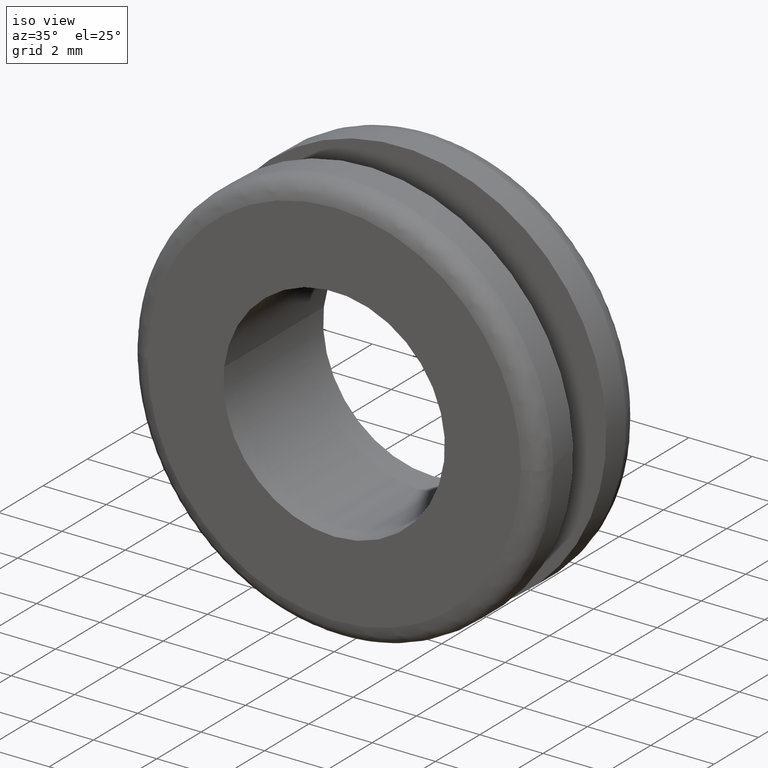
[diagram: clean part render]
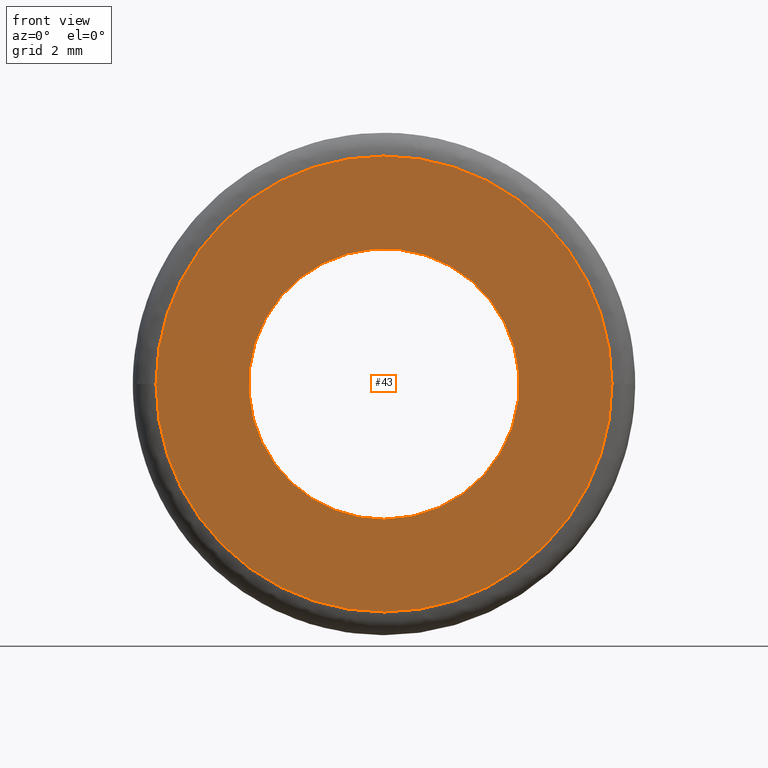
[diagram: tour spotlight — one face highlighted and labeled with its STEP entity id]
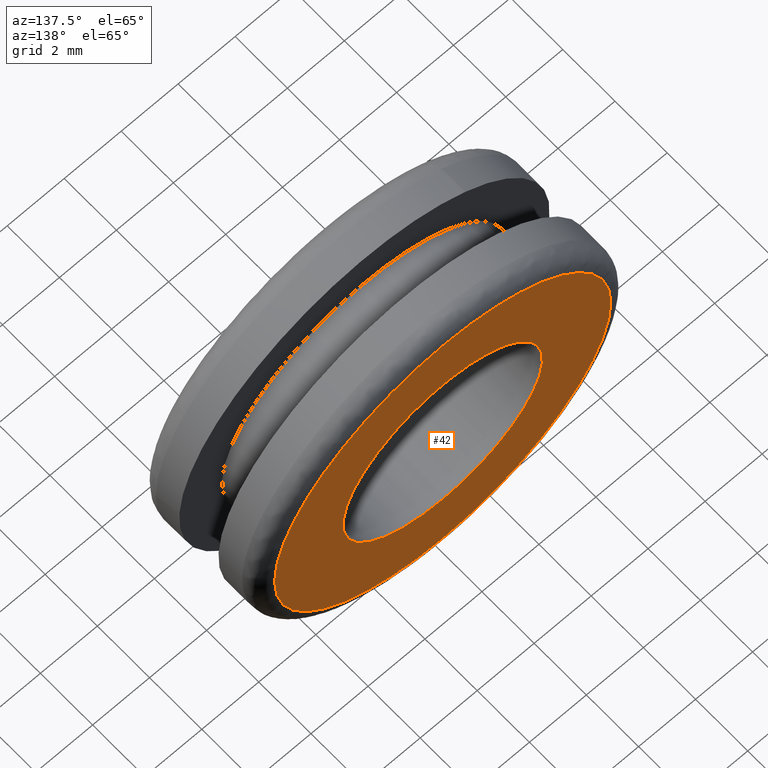
[diagram: tour spotlight — one face highlighted and labeled with its STEP entity id]
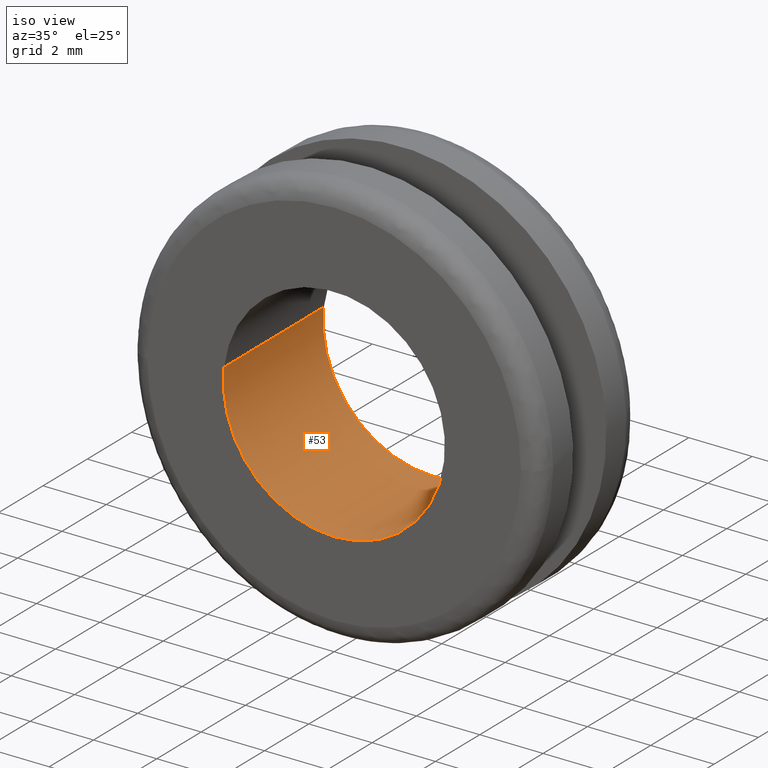
[diagram: tour spotlight — one face highlighted and labeled with its STEP entity id]
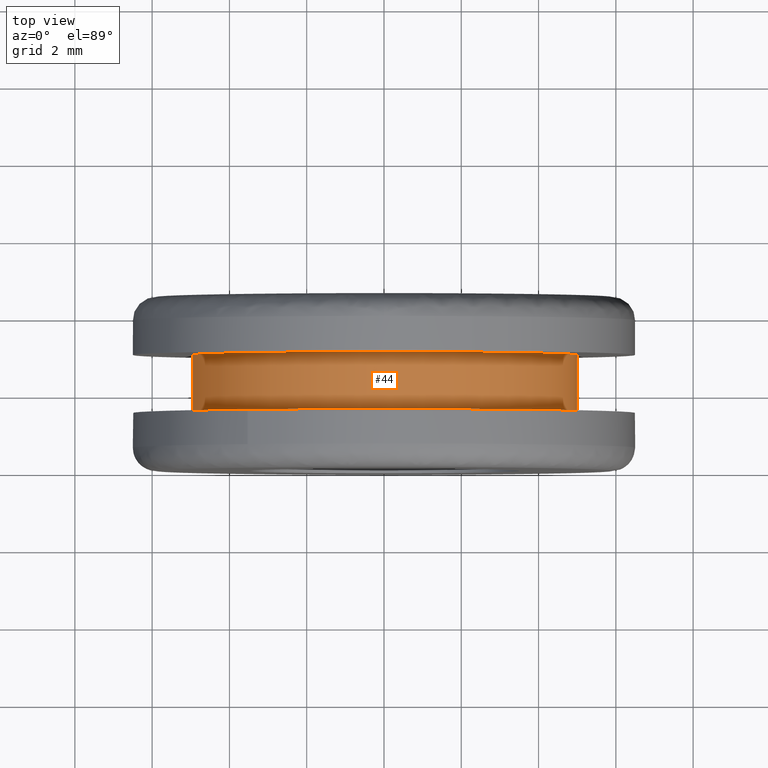
[diagram: tour spotlight — one face highlighted and labeled with its STEP entity id]
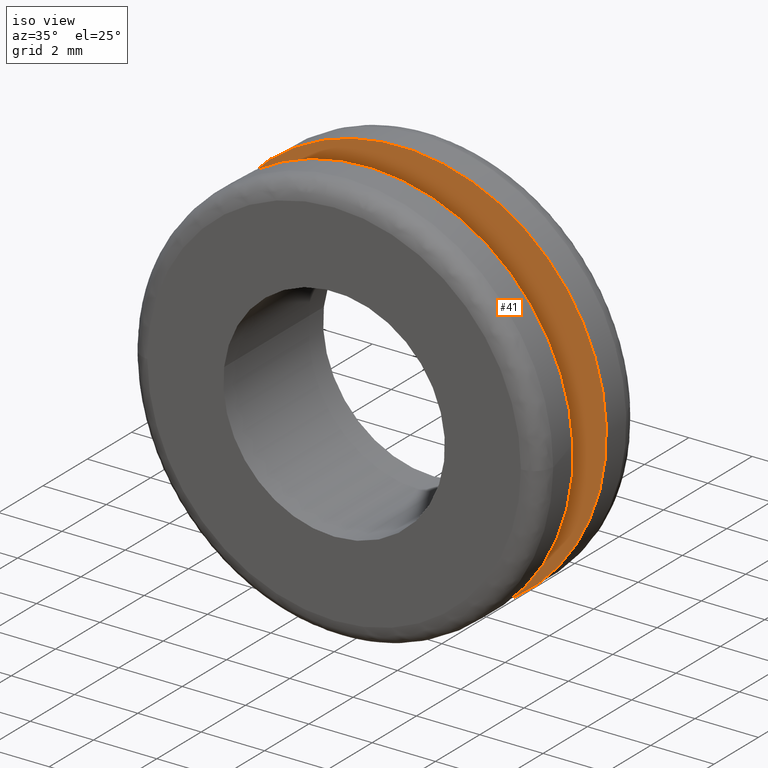
[diagram: tour spotlight — one face highlighted and labeled with its STEP entity id]
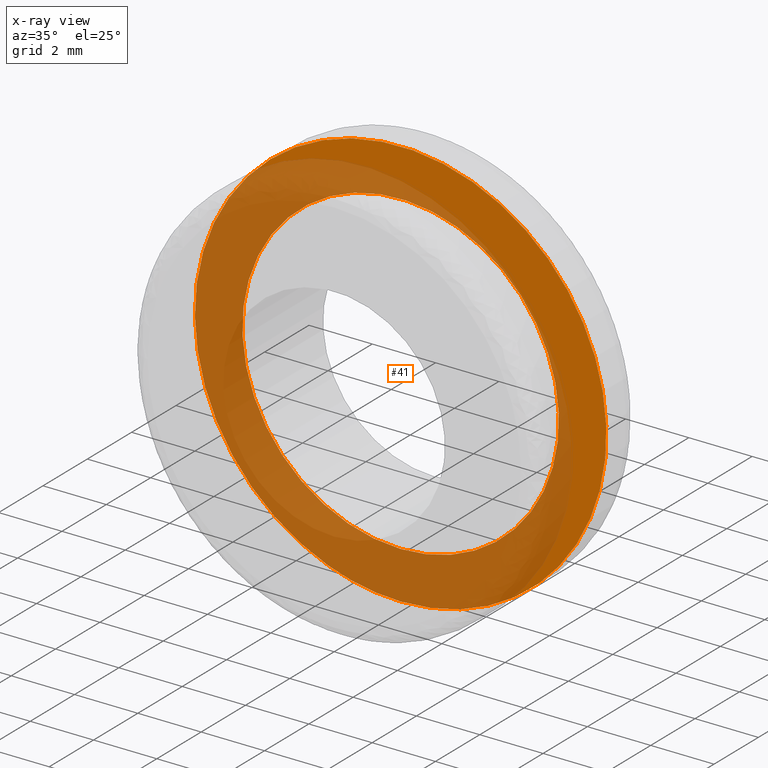
[diagram: x-ray of the same camera — body ghosted, this tour face saturated]
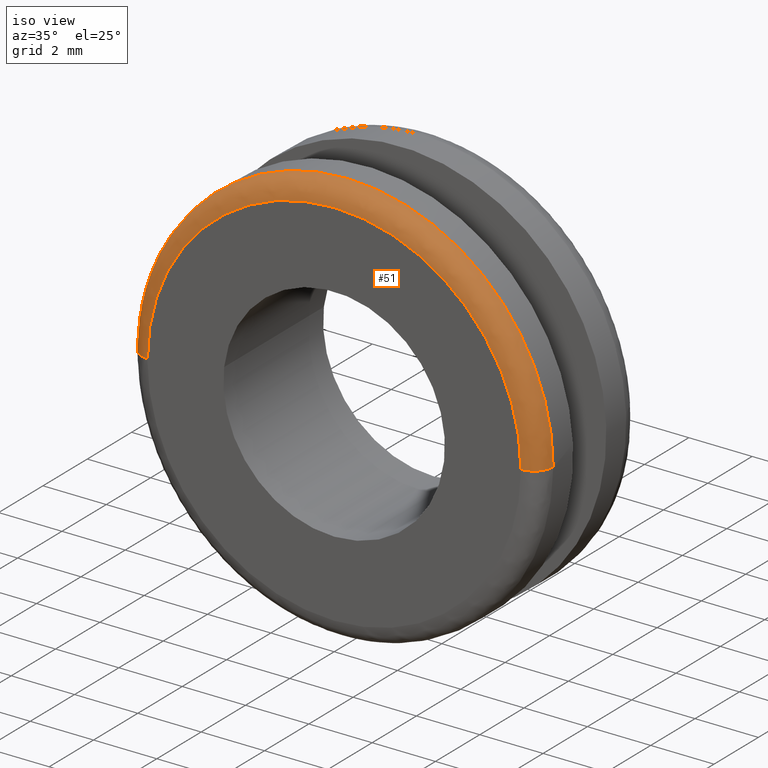
[diagram: tour spotlight — one face highlighted and labeled with its STEP entity id]
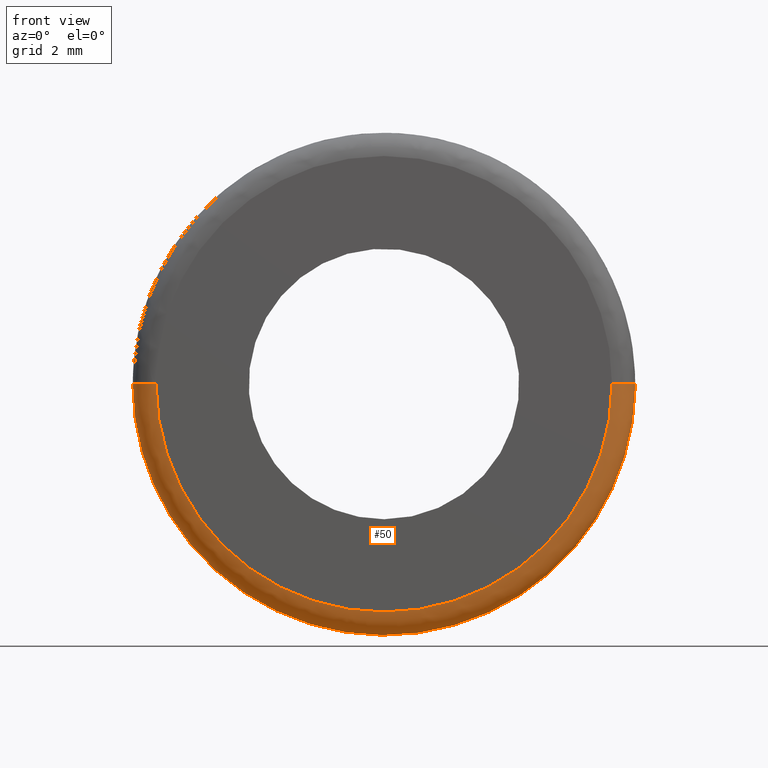
[diagram: tour spotlight — one face highlighted and labeled with its STEP entity id]
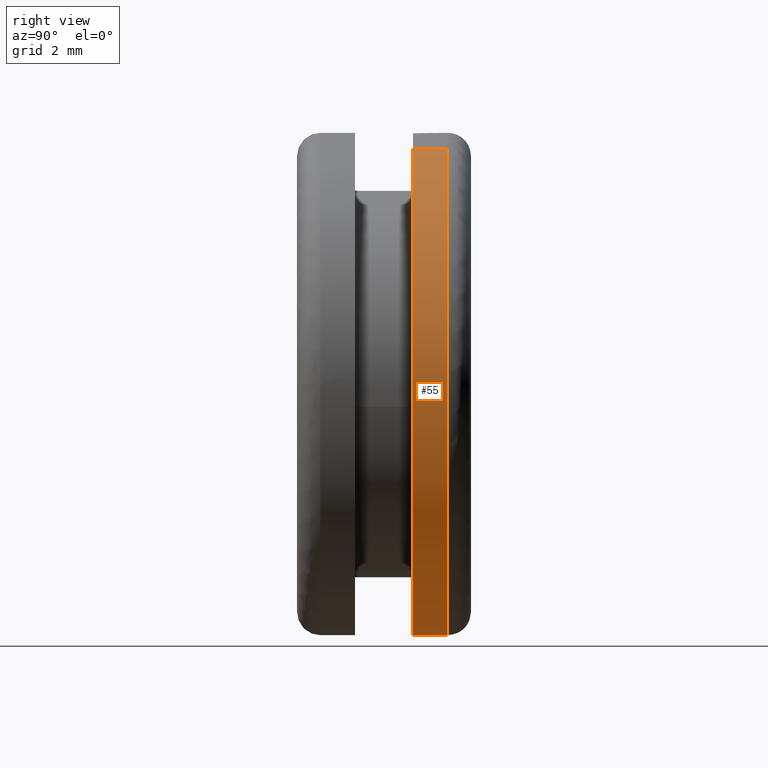
[diagram: tour spotlight — one face highlighted and labeled with its STEP entity id]
A machine part: a face-by-face anatomy tour. The part has 16 B-rep faces; the first image is the clean iso view, then the 8 largest visible faces are spotlighted one at a time (largest first), each with its STEP entity span.

Face 1 — front view, entity #43. In plain terms, the highlighted planar face has unit normal (0, 1, 0).
Definition (entity closure, byte-faithful):
#43=ADVANCED_FACE('',(#90,#91),#89,.F.);
#89=PLANE('',#241);
#90=FACE_OUTER_BOUND('',#242,.T.);
#91=FACE_BOUND('',#243,.T.);
#238=CARTESIAN_POINT('',(-1.22629197182E+001,-8.63347500000E-016,-1.35700000004E+001));
#239=DIRECTION('',(0.00000000000E+000,1.00000000000E+000,0.00000000000E+000));
#240=DIRECTION('',(0.00000000000E+000,0.00000000000E+000,1.00000000000E+000));
#241=AXIS2_PLACEMENT_3D('',#238,#239,#240);
#242=EDGE_LOOP('',(#406,#407,#408));
#243=EDGE_LOOP('',(#409,#410,#411));
#406=ORIENTED_EDGE('',*,*,#504,.T.);
#407=ORIENTED_EDGE('',*,*,#505,.T.);
#408=ORIENTED_EDGE('',*,*,#506,.T.);
#409=ORIENTED_EDGE('',*,*,#507,.F.);
#410=ORIENTED_EDGE('',*,*,#508,.F.);
#411=ORIENTED_EDGE('',*,*,#509,.F.);
#504=EDGE_CURVE('',#661,#662,#663,.T.);
#505=EDGE_CURVE('',#662,#669,#670,.T.);
#506=EDGE_CURVE('',#669,#661,#676,.T.);
#507=EDGE_CURVE('',#682,#683,#684,.T.);
#508=EDGE_CURVE('',#690,#682,#691,.T.);
#509=EDGE_CURVE('',#683,#690,#697,.T.);
#661=VERTEX_POINT('',#956);
#662=VERTEX_POINT('',#957);
#663=CIRCLE('',#961,5.90000000030E+000);
#669=VERTEX_POINT('',#962);
#670=CIRCLE('',#966,5.90000000030E+000);
#676=CIRCLE('',#970,5.90000000030E+000);
#682=VERTEX_POINT('',#971);
#683=VERTEX_POINT('',#972);
#684=CIRCLE('',#976,3.49999999999E+000);
#690=VERTEX_POINT('',#977);
#691=CIRCLE('',#981,3.49999999999E+000);
#697=CIRCLE('',#985,3.49999999999E+000);
#956=CARTESIAN_POINT('',(-5.65335170724E-016,-2.11153201715E-014,5.90000000060E+000));
#957=CARTESIAN_POINT('',(-5.90000000036E+000,-1.10995485852E-014,4.47488143441E-014));
#958=CARTESIAN_POINT('',(-5.73145975125E-011,-1.10995485857E-014,2.97966984419E-010));
#959=DIRECTION('',(-1.92521086869E-031,-1.00000000000E+000,-1.69758840428E-015));
#960=DIRECTION('',(9.71367619158E-012,-1.69758840428E-015,1.00000000000E+000));
#961=AXIS2_PLACEMENT_3D('',#958,#959,#960);
#962=CARTESIAN_POINT('',(5.89999996847E+000,-1.10985091389E-014,-6.12307617103E-004));
#963=CARTESIAN_POINT('',(-5.73145975125E-011,-1.10995485857E-014,2.97966984419E-010));
#964=DIRECTION('',(-1.92521086869E-031,-1.00000000000E+000,-1.69758840428E-015));
#965=DIRECTION('',(9.71367619158E-012,-1.69758840428E-015,1.00000000000E+000));
#966=AXIS2_PLACEMENT_3D('',#963,#964,#965);
#967=CARTESIAN_POINT('',(-5.73145975125E-011,-1.10995485857E-014,2.97966984419E-010));
#968=DIRECTION('',(-1.92521086869E-031,-1.00000000000E+000,-1.69758840428E-015));
#969=DIRECTION('',(9.71367619158E-012,-1.69758840428E-015,1.00000000000E+000));
#970=AXIS2_PLACEMENT_3D('',#967,#968,#969);
#971=CARTESIAN_POINT('',(-3.47553372667E+000,-4.82737399220E-016,4.13116587344E-001));
#972=CARTESIAN_POINT('',(-4.44089209850E-016,8.15682009466E-016,-3.49999999999E+000));
#973=CARTESIAN_POINT('',(2.66120459003E-012,-5.22773618531E-016,5.85753667792E-012));
#974=DIRECTION('',(-5.69750098369E-017,-1.00000000000E+000,-3.82415893714E-016));
#975=DIRECTION('',(-7.60086438234E-013,3.82415893714E-016,-1.00000000000E+000));
#976=AXIS2_PLACEMENT_3D('',#973,#974,#975);
#977=CARTESIAN_POINT('',(3.47546212191E+000,-5.62575557824E-016,-4.13718550637E-001));
#978=CARTESIAN_POINT('',(2.66120459003E-012,-5.22773618531E-016,5.85753667792E-012));
#979=DIRECTION('',(-5.69750098369E-017,-1.00000000000E+000,-3.82415893714E-016));
#980=DIRECTION('',(-7.60086438234E-013,3.82415893714E-016,-1.00000000000E+000));
#981=AXIS2_PLACEMENT_3D('',#978,#979,#980);
#982=CARTESIAN_POINT('',(2.66120459003E-012,-5.22773618531E-016,5.85753667792E-012));
#983=DIRECTION('',(-5.69750098369E-017,-1.00000000000E+000,-3.82415893714E-016));
#984=DIRECTION('',(-7.60086438234E-013,3.82415893714E-016,-1.00000000000E+000));
#985=AXIS2_PLACEMENT_3D('',#982,#983,#984);

Face 2 — auxiliary view, entity #42. In plain terms, the highlighted planar face has unit normal (0, -1, 0).
Definition (entity closure, byte-faithful):
#42=ADVANCED_FACE('',(#79,#80),#78,.F.);
#78=PLANE('',#235);
#79=FACE_OUTER_BOUND('',#236,.T.);
#80=FACE_BOUND('',#237,.T.);
#232=CARTESIAN_POINT('',(-7.67000000224E+000,4.50000000000E+000,1.22629197190E+001));
#233=DIRECTION('',(0.00000000000E+000,-1.00000000000E+000,0.00000000000E+000));
#234=DIRECTION('',(0.00000000000E+000,0.00000000000E+000,-1.00000000000E+000));
#235=AXIS2_PLACEMENT_3D('',#232,#233,#234);
#236=EDGE_LOOP('',(#400,#401,#402));
#237=EDGE_LOOP('',(#403,#404,#405));
#400=ORIENTED_EDGE('',*,*,#498,.F.);
#401=ORIENTED_EDGE('',*,*,#499,.F.);
#402=ORIENTED_EDGE('',*,*,#500,.F.);
#403=ORIENTED_EDGE('',*,*,#501,.T.);
#404=ORIENTED_EDGE('',*,*,#502,.T.);
#405=ORIENTED_EDGE('',*,*,#503,.T.);
#498=EDGE_CURVE('',#619,#620,#621,.T.);
#499=EDGE_CURVE('',#627,#619,#628,.T.);
#500=EDGE_CURVE('',#620,#627,#634,.T.);
#501=EDGE_CURVE('',#640,#641,#642,.T.);
#502=EDGE_CURVE('',#641,#648,#649,.T.);
#503=EDGE_CURVE('',#648,#640,#655,.T.);
#619=VERTEX_POINT('',#926);
#620=VERTEX_POINT('',#927);
#621=CIRCLE('',#931,5.90000000070E+000);
#627=VERTEX_POINT('',#932);
#628=CIRCLE('',#936,5.90000000070E+000);
#634=CIRCLE('',#940,5.90000000070E+000);
#640=VERTEX_POINT('',#941);
#641=VERTEX_POINT('',#942);
#642=CIRCLE('',#946,3.49999999999E+000);
#648=VERTEX_POINT('',#947);
#649=CIRCLE('',#951,3.49999999999E+000);
#655=CIRCLE('',#955,3.49999999999E+000);
#926=CARTESIAN_POINT('',(-5.80077222970E-015,4.50000000000E+000,5.90000000140E+000));
#927=CARTESIAN_POINT('',(-5.90000000070E+000,4.50000000000E+000,1.33226762955E-015));
#928=CARTESIAN_POINT('',(1.38755673618E-012,4.50000000000E+000,6.99001745375E-010));
#929=DIRECTION('',(-2.19525544382E-016,-1.00000000000E+000,-4.42275138600E-015));
#930=DIRECTION('',(-1.00000000000E+000,2.19525544906E-016,-1.18474952071E-010));
#931=AXIS2_PLACEMENT_3D('',#928,#929,#930);
#932=CARTESIAN_POINT('',(6.12307882634E-004,4.50000000000E+000,-5.89999996823E+000));
#933=CARTESIAN_POINT('',(1.38755673618E-012,4.50000000000E+000,6.99001745375E-010));
#934=DIRECTION('',(-2.19525544382E-016,-1.00000000000E+000,-4.42275138600E-015));
#935=DIRECTION('',(-1.00000000000E+000,2.19525544906E-016,-1.18474952071E-010));
#936=AXIS2_PLACEMENT_3D('',#933,#934,#935);
#937=CARTESIAN_POINT('',(1.38755673618E-012,4.50000000000E+000,6.99001745375E-010));
#938=DIRECTION('',(-2.19525544382E-016,-1.00000000000E+000,-4.42275138600E-015));
#939=DIRECTION('',(-1.00000000000E+000,2.19525544906E-016,-1.18474952071E-010));
#940=AXIS2_PLACEMENT_3D('',#937,#938,#939);
#941=CARTESIAN_POINT('',(-1.60982338571E-015,4.50000000000E+000,-3.49999999999E+000));
#942=CARTESIAN_POINT('',(3.47546212191E+000,4.50000000000E+000,-4.13718550637E-001));
#943=CARTESIAN_POINT('',(2.72604161466E-012,4.50000000000E+000,6.00031135889E-012));
#944=DIRECTION('',(-3.34832142866E-015,-1.00000000000E+000,-1.95696105885E-014));
#945=DIRECTION('',(-7.78946351865E-013,1.95696105885E-014,-1.00000000000E+000));
#946=AXIS2_PLACEMENT_3D('',#943,#944,#945);
#947=CARTESIAN_POINT('',(-3.47553372667E+000,4.50000000000E+000,4.13116587344E-001));
#948=CARTESIAN_POINT('',(2.72604161466E-012,4.50000000000E+000,6.00031135889E-012));
#949=DIRECTION('',(-3.34832142866E-015,-1.00000000000E+000,-1.95696105885E-014));
#950=DIRECTION('',(-7.78946351865E-013,1.95696105885E-014,-1.00000000000E+000));
#951=AXIS2_PLACEMENT_3D('',#948,#949,#950);
#952=CARTESIAN_POINT('',(2.72604161466E-012,4.50000000000E+000,6.00031135889E-012));
#953=DIRECTION('',(-3.34832142866E-015,-1.00000000000E+000,-1.95696105885E-014));
#954=DIRECTION('',(-7.78946351865E-013,1.95696105885E-014,-1.00000000000E+000));
#955=AXIS2_PLACEMENT_3D('',#952,#953,#954);

Face 3 — iso view, entity #53. In plain terms, the highlighted cylindrical surface (partial cylindrical patch) has radius 3.5 mm, axis along (-0, 1, -0).
Definition (entity closure, byte-faithful):
#53=ADVANCED_FACE('',(#191),#190,.F.);
#190=CYLINDRICAL_SURFACE('',#376,3.50000000000E+000);
#191=FACE_OUTER_BOUND('',#377,.T.);
#373=CARTESIAN_POINT('',(-3.02532469619E-013,4.50000000000E+000,-7.51689274686E-013));
#374=DIRECTION('',(-3.60124763988E-016,1.00000000000E+000,-1.95473636024E-015));
#375=DIRECTION('',(-9.93009593028E-001,-1.26882631386E-016,1.18033673816E-001));
#376=AXIS2_PLACEMENT_3D('',#373,#374,#375);
#377=EDGE_LOOP('',(#468,#469,#470,#471,#472,#473));
#468=ORIENTED_EDGE('',*,*,#501,.F.);
#469=ORIENTED_EDGE('',*,*,#503,.F.);
#470=ORIENTED_EDGE('',*,*,#531,.F.);
#471=ORIENTED_EDGE('',*,*,#507,.T.);
#472=ORIENTED_EDGE('',*,*,#509,.T.);
#473=ORIENTED_EDGE('',*,*,#532,.T.);
#501=EDGE_CURVE('',#640,#641,#642,.T.);
#503=EDGE_CURVE('',#648,#640,#655,.T.);
#507=EDGE_CURVE('',#682,#683,#684,.T.);
#509=EDGE_CURVE('',#683,#690,#697,.T.);
#531=EDGE_CURVE('',#682,#648,#842,.T.);
#532=EDGE_CURVE('',#690,#641,#848,.T.);
#640=VERTEX_POINT('',#941);
#641=VERTEX_POINT('',#942);
#642=CIRCLE('',#946,3.49999999999E+000);
#648=VERTEX_POINT('',#947);
#655=CIRCLE('',#955,3.49999999999E+000);
#682=VERTEX_POINT('',#971);
#683=VERTEX_POINT('',#972);
#684=CIRCLE('',#976,3.49999999999E+000);
#690=VERTEX_POINT('',#977);
#697=CIRCLE('',#985,3.49999999999E+000);
#842=(BOUNDED_CURVE() B_SPLINE_CURVE(1,(#1073,#1074),.UNSPECIFIED.,.F.,.F.) B_SPLINE_CURVE_WITH_KNOTS((2,2),(8.33333313467E-002,9.16666670832E-001),.UNSPECIFIED.) CURVE() GEOMETRIC_REPRESENTATION_ITEM() RATIONAL_B_SPLINE_CURVE((1.00000000000E+000,1.00000000000E+000)) REPRESENTATION_ITEM('') );
#848=(BOUNDED_CURVE() B_SPLINE_CURVE(1,(#1075,#1076),.UNSPECIFIED.,.F.,.F.) B_SPLINE_CURVE_WITH_KNOTS((2,2),(8.33333333333E-002,9.16666666667E-001),.UNSPECIFIED.) CURVE() GEOMETRIC_REPRESENTATION_ITEM() RATIONAL_B_SPLINE_CURVE((7.50000000000E-001,7.50000000000E-001)) REPRESENTATION_ITEM('') );
#941=CARTESIAN_POINT('',(-1.60982338571E-015,4.50000000000E+000,-3.49999999999E+000));
#942=CARTESIAN_POINT('',(3.47546212191E+000,4.50000000000E+000,-4.13718550637E-001));
#943=CARTESIAN_POINT('',(2.72604161466E-012,4.50000000000E+000,6.00031135889E-012));
#944=DIRECTION('',(-3.34832142866E-015,-1.00000000000E+000,-1.95696105885E-014));
#945=DIRECTION('',(-7.78946351865E-013,1.95696105885E-014,-1.00000000000E+000));
#946=AXIS2_PLACEMENT_3D('',#943,#944,#945);
#947=CARTESIAN_POINT('',(-3.47553372667E+000,4.50000000000E+000,4.13116587344E-001));
#952=CARTESIAN_POINT('',(2.72604161466E-012,4.50000000000E+000,6.00031135889E-012));
#953=DIRECTION('',(-3.34832142866E-015,-1.00000000000E+000,-1.95696105885E-014));
#954=DIRECTION('',(-7.78946351865E-013,1.95696105885E-014,-1.00000000000E+000));
#955=AXIS2_PLACEMENT_3D('',#952,#953,#954);
#971=CARTESIAN_POINT('',(-3.47553372667E+000,-4.82737399220E-016,4.13116587344E-001));
#972=CARTESIAN_POINT('',(-4.44089209850E-016,8.15682009466E-016,-3.49999999999E+000));
#973=CARTESIAN_POINT('',(2.66120459003E-012,-5.22773618531E-016,5.85753667792E-012));
#974=DIRECTION('',(-5.69750098369E-017,-1.00000000000E+000,-3.82415893714E-016));
#975=DIRECTION('',(-7.60086438234E-013,3.82415893714E-016,-1.00000000000E+000));
#976=AXIS2_PLACEMENT_3D('',#973,#974,#975);
#977=CARTESIAN_POINT('',(3.47546212191E+000,-5.62575557824E-016,-4.13718550637E-001));
#982=CARTESIAN_POINT('',(2.66120459003E-012,-5.22773618531E-016,5.85753667792E-012));
#983=DIRECTION('',(-5.69750098369E-017,-1.00000000000E+000,-3.82415893714E-016));
#984=DIRECTION('',(-7.60086438234E-013,3.82415893714E-016,-1.00000000000E+000));
#985=AXIS2_PLACEMENT_3D('',#982,#983,#984);
#1073=CARTESIAN_POINT('',(-3.47553357560E+000,-1.07279536921E-008,4.13117858355E-001));
#1074=CARTESIAN_POINT('',(-3.47553357560E+000,4.50000002249E+000,4.13117858355E-001));
#1075=CARTESIAN_POINT('',(3.47553357560E+000,2.44249065418E-015,-4.13117858357E-001));
#1076=CARTESIAN_POINT('',(3.47553357560E+000,4.50000000000E+000,-4.13117858357E-001));

Face 4 — top view, entity #44. In plain terms, the highlighted cylindrical surface (partial cylindrical patch) has radius 5 mm, axis along (-0, 1, -0).
Definition (entity closure, byte-faithful):
#44=ADVANCED_FACE('',(#101),#100,.T.);
#100=CYLINDRICAL_SURFACE('',#247,5.00000000000E+000);
#101=FACE_OUTER_BOUND('',#248,.T.);
#244=CARTESIAN_POINT('',(-7.27569771743E-017,3.03750000000E+000,-1.00156952261E-015));
#245=DIRECTION('',(-1.80395372549E-016,1.00000000000E+000,-1.51764718070E-015));
#246=DIRECTION('',(-9.93009526364E-001,-3.45126646034E-031,1.18034234657E-001));
#247=AXIS2_PLACEMENT_3D('',#244,#245,#246);
#248=EDGE_LOOP('',(#412,#413,#414,#415));
#412=ORIENTED_EDGE('',*,*,#496,.T.);
#413=ORIENTED_EDGE('',*,*,#510,.F.);
#414=ORIENTED_EDGE('',*,*,#490,.F.);
#415=ORIENTED_EDGE('',*,*,#511,.T.);
#490=EDGE_CURVE('',#557,#564,#565,.T.);
#496=EDGE_CURVE('',#606,#598,#607,.T.);
#510=EDGE_CURVE('',#564,#598,#703,.T.);
#511=EDGE_CURVE('',#557,#606,#709,.T.);
#557=VERTEX_POINT('',#882);
#564=VERTEX_POINT('',#887);
#565=CIRCLE('',#891,5.00000000000E+000);
#598=VERTEX_POINT('',#911);
#606=VERTEX_POINT('',#917);
#607=CIRCLE('',#921,5.00000000000E+000);
#703=(BOUNDED_CURVE() B_SPLINE_CURVE(1,(#986,#987),.UNSPECIFIED.,.F.,.F.) B_SPLINE_CURVE_WITH_KNOTS((2,2),(8.33333532020E-002,9.16666656883E-001),.UNSPECIFIED.) CURVE() GEOMETRIC_REPRESENTATION_ITEM() RATIONAL_B_SPLINE_CURVE((1.00000000000E+000,1.00000000000E+000)) REPRESENTATION_ITEM('') );
#709=(BOUNDED_CURVE() B_SPLINE_CURVE(1,(#988,#989),.UNSPECIFIED.,.F.,.F.) B_SPLINE_CURVE_WITH_KNOTS((2,2),(8.33333333341E-002,9.16666666667E-001),.UNSPECIFIED.) CURVE() GEOMETRIC_REPRESENTATION_ITEM() RATIONAL_B_SPLINE_CURVE((7.50000000000E-001,7.50000000000E-001)) REPRESENTATION_ITEM('') );
#882=CARTESIAN_POINT('',(4.96494555446E+000,1.50000000000E+000,-5.91029306600E-001));
#887=CARTESIAN_POINT('',(-4.96504784764E+000,1.50000000000E+000,5.90169357594E-001));
#888=CARTESIAN_POINT('',(1.73505654288E-012,1.50000000000E+000,3.81028542051E-012));
#889=DIRECTION('',(-1.77507101533E-014,-1.00000000000E+000,-1.20365586263E-013));
#890=DIRECTION('',(-3.47250006527E-013,1.20365586263E-013,-1.00000000000E+000));
#891=AXIS2_PLACEMENT_3D('',#888,#889,#890);
#911=CARTESIAN_POINT('',(-4.96504784764E+000,3.00000000000E+000,5.90169357594E-001));
#917=CARTESIAN_POINT('',(4.96494555446E+000,3.00000000000E+000,-5.91029306600E-001));
#918=CARTESIAN_POINT('',(1.69153580032E-012,3.00000000000E+000,3.71569441882E-012));
#919=DIRECTION('',(6.28582337640E-016,-1.00000000000E+000,3.78327844900E-015));
#920=DIRECTION('',(-3.38340466755E-013,-3.78327844900E-015,-1.00000000000E+000));
#921=AXIS2_PLACEMENT_3D('',#918,#919,#920);
#986=CARTESIAN_POINT('',(-4.96504763182E+000,1.50000003576E+000,5.90171173284E-001));
#987=CARTESIAN_POINT('',(-4.96504763182E+000,2.99999998239E+000,5.90171173284E-001));
#988=CARTESIAN_POINT('',(4.96504763182E+000,1.50000000000E+000,-5.90171173284E-001));
#989=CARTESIAN_POINT('',(4.96504763182E+000,3.00000000000E+000,-5.90171173284E-001));

Face 5 — iso view, entity #41. An x-ray twin of the same camera follows (body ghosted, this face saturated) — the face is partly hidden behind the body. In plain terms, the highlighted planar face has unit normal (0, 1, 0).
Definition (entity closure, byte-faithful):
#41=ADVANCED_FACE('',(#68,#69),#67,.F.);
#67=PLANE('',#229);
#68=FACE_OUTER_BOUND('',#230,.T.);
#69=FACE_BOUND('',#231,.T.);
#226=CARTESIAN_POINT('',(-1.35099962990E+001,3.00000000000E+000,-8.44999999999E+000));
#227=DIRECTION('',(0.00000000000E+000,1.00000000000E+000,0.00000000000E+000));
#228=DIRECTION('',(0.00000000000E+000,0.00000000000E+000,1.00000000000E+000));
#229=AXIS2_PLACEMENT_3D('',#226,#227,#228);
#230=EDGE_LOOP('',(#394,#395,#396));
#231=EDGE_LOOP('',(#397,#398,#399));
#394=ORIENTED_EDGE('',*,*,#492,.T.);
#395=ORIENTED_EDGE('',*,*,#493,.T.);
#396=ORIENTED_EDGE('',*,*,#494,.T.);
#397=ORIENTED_EDGE('',*,*,#495,.F.);
#398=ORIENTED_EDGE('',*,*,#496,.F.);
#399=ORIENTED_EDGE('',*,*,#497,.F.);
#492=EDGE_CURVE('',#577,#578,#579,.T.);
#493=EDGE_CURVE('',#578,#585,#586,.T.);
#494=EDGE_CURVE('',#585,#577,#592,.T.);
#495=EDGE_CURVE('',#598,#599,#600,.T.);
#496=EDGE_CURVE('',#606,#598,#607,.T.);
#497=EDGE_CURVE('',#599,#606,#613,.T.);
#577=VERTEX_POINT('',#896);
#578=VERTEX_POINT('',#897);
#579=CIRCLE('',#901,6.50000000000E+000);
#585=VERTEX_POINT('',#902);
#586=CIRCLE('',#906,6.50000000000E+000);
#592=CIRCLE('',#910,6.50000000000E+000);
#598=VERTEX_POINT('',#911);
#599=VERTEX_POINT('',#912);
#600=CIRCLE('',#916,5.00000000000E+000);
#606=VERTEX_POINT('',#917);
#607=CIRCLE('',#921,5.00000000000E+000);
#613=CIRCLE('',#925,5.00000000000E+000);
#896=CARTESIAN_POINT('',(-2.66453525910E-015,3.00000000000E+000,-6.49999999999E+000));
#897=CARTESIAN_POINT('',(2.28512901679E+000,3.00000000000E+000,6.08507891293E+000));
#898=CARTESIAN_POINT('',(6.88338275268E-015,3.00000000000E+000,2.96740410022E-012));
#899=DIRECTION('',(4.37048390339E-017,-1.00000000000E+000,6.95352065091E-014));
#900=DIRECTION('',(-1.49880108324E-015,-6.95352065091E-014,-1.00000000000E+000));
#901=AXIS2_PLACEMENT_3D('',#898,#899,#900);
#902=CARTESIAN_POINT('',(-2.28551696385E+000,3.00000000000E+000,-6.08493321310E+000));
#903=CARTESIAN_POINT('',(6.88338275268E-015,3.00000000000E+000,2.96740410022E-012));
#904=DIRECTION('',(4.37048390339E-017,-1.00000000000E+000,6.95352065091E-014));
#905=DIRECTION('',(-1.49880108324E-015,-6.95352065091E-014,-1.00000000000E+000));
#906=AXIS2_PLACEMENT_3D('',#903,#904,#905);
#907=CARTESIAN_POINT('',(6.88338275268E-015,3.00000000000E+000,2.96740410022E-012));
#908=DIRECTION('',(4.37048390339E-017,-1.00000000000E+000,6.95352065091E-014));
#909=DIRECTION('',(-1.49880108324E-015,-6.95352065091E-014,-1.00000000000E+000));
#910=AXIS2_PLACEMENT_3D('',#907,#908,#909);
#911=CARTESIAN_POINT('',(-4.96504784764E+000,3.00000000000E+000,5.90169357594E-001));
#912=CARTESIAN_POINT('',(-1.99840144433E-015,3.00000000000E+000,-4.99999999999E+000));
#913=CARTESIAN_POINT('',(1.69153580032E-012,3.00000000000E+000,3.71569441882E-012));
#914=DIRECTION('',(6.28582337640E-016,-1.00000000000E+000,3.78327844900E-015));
#915=DIRECTION('',(-3.38340466755E-013,-3.78327844900E-015,-1.00000000000E+000));
#916=AXIS2_PLACEMENT_3D('',#913,#914,#915);
#917=CARTESIAN_POINT('',(4.96494555446E+000,3.00000000000E+000,-5.91029306600E-001));
#918=CARTESIAN_POINT('',(1.69153580032E-012,3.00000000000E+000,3.71569441882E-012));
#919=DIRECTION('',(6.28582337640E-016,-1.00000000000E+000,3.78327844900E-015));
#920=DIRECTION('',(-3.38340466755E-013,-3.78327844900E-015,-1.00000000000E+000));
#921=AXIS2_PLACEMENT_3D('',#918,#919,#920);
#922=CARTESIAN_POINT('',(1.69153580032E-012,3.00000000000E+000,3.71569441882E-012));
#923=DIRECTION('',(6.28582337640E-016,-1.00000000000E+000,3.78327844900E-015));
#924=DIRECTION('',(-3.38340466755E-013,-3.78327844900E-015,-1.00000000000E+000));
#925=AXIS2_PLACEMENT_3D('',#922,#923,#924);

Face 6 — iso view, entity #51. In plain terms, the highlighted face is a freeform B-spline surface patch.
Definition (entity closure, byte-faithful):
#51=ADVANCED_FACE('',(#171),#170,.T.);
#170=( BOUNDED_SURFACE() B_SPLINE_SURFACE( 2,2,((#342,#343,#344,#345,#346),(#347,#348,#349,#350,#351),(#352,#353,#354,#355,#356),(#357,#358,#359,#360,#361),(#362,#363,#364,#365,#366)), .UNSPECIFIED.,.F.,.F.,.F.) B_SPLINE_SURFACE_WITH_KNOTS((3,2,3),(3,2,3),(0.00000000000E+000,5.00000000000E-001,1.00000000000E+000),(0.00000000000E+000,5.00000000000E-001,1.00000000000E+000), .UNSPECIFIED. ) GEOMETRIC_REPRESENTATION_ITEM() RATIONAL_B_SPLINE_SURFACE(((1.00000000000E+000,7.07106779151E-001,1.00000000000E+000,7.07106779151E-001,1.00000000000E+000),(7.07106781187E-001,4.99999998561E-001,7.07106781187E-001,4.99999998561E-001,7.07106781187E-001),(1.00000000000E+000,7.07106779151E-001,1.00000000000E+000,7.07106779151E-001,1.00000000000E+000),(7.07106781187E-001,4.99999998561E-001,7.07106781187E-001,4.99999998561E-001,7.07106781187E-001),(1.00000000000E+000,7.07106779151E-001,1.00000000000E+000,7.07106779151E-001,1.00000000000E+000))) REPRESENTATION_ITEM('') SURFACE() );
#171=FACE_OUTER_BOUND('',#367,.T.);
#342=CARTESIAN_POINT('',(6.50000000000E+000,6.00000000001E-001,4.66748772360E-014));
#343=CARTESIAN_POINT('',(6.50000000000E+000,-3.45266213778E-009,4.59063772699E-014));
#344=CARTESIAN_POINT('',(5.89999999655E+000,1.18149934281E-012,4.59063797011E-014));
#345=CARTESIAN_POINT('',(5.29999999309E+000,3.45502528395E-009,4.59063821322E-014));
#346=CARTESIAN_POINT('',(5.30000000000E+000,6.00000006909E-001,4.66748820983E-014));
#347=CARTESIAN_POINT('',(6.50000000000E+000,6.00000000001E-001,6.50000000000E+000));
#348=CARTESIAN_POINT('',(6.50000000000E+000,-3.45267049489E-009,6.50000000000E+000));
#349=CARTESIAN_POINT('',(5.89999999655E+000,1.17390049824E-012,5.89999999655E+000));
#350=CARTESIAN_POINT('',(5.29999999309E+000,3.45501852328E-009,5.29999999309E+000));
#351=CARTESIAN_POINT('',(5.30000000000E+000,6.00000006909E-001,5.30000000000E+000));
#352=CARTESIAN_POINT('',(-2.47554539025E-014,6.00000000001E-001,6.50000000000E+000));
#353=CARTESIAN_POINT('',(3.63966111654E-014,-3.45333295978E-009,6.50000000000E+000));
#354=CARTESIAN_POINT('',(3.63598689825E-014,5.72653036102E-013,5.89999999655E+000));
#355=CARTESIAN_POINT('',(3.63231267995E-014,3.45447834224E-009,5.29999999309E+000));
#356=CARTESIAN_POINT('',(-2.48289382679E-014,6.00000006908E-001,5.30000000000E+000));
#357=CARTESIAN_POINT('',(-6.50000000000E+000,6.00000000000E-001,6.50000000000E+000));
#358=CARTESIAN_POINT('',(-6.50000000000E+000,-3.45399543505E-009,6.50000000000E+000));
#359=CARTESIAN_POINT('',(-5.89999999655E+000,-2.86793028085E-014,5.89999999655E+000));
#360=CARTESIAN_POINT('',(-5.29999999309E+000,3.45393819777E-009,5.29999999309E+000));
#361=CARTESIAN_POINT('',(-5.30000000000E+000,6.00000006908E-001,5.30000000000E+000));
#362=CARTESIAN_POINT('',(-6.50000000000E+000,6.00000000000E-001,4.74709502344E-014));
#363=CARTESIAN_POINT('',(-6.50000000000E+000,-3.45398706030E-009,4.67024502683E-014));
#364=CARTESIAN_POINT('',(-5.89999999655E+000,-2.12052597703E-014,4.66289690376E-014));
#365=CARTESIAN_POINT('',(-5.29999999309E+000,3.45394490332E-009,4.65554878070E-014));
#366=CARTESIAN_POINT('',(-5.30000000000E+000,6.00000006908E-001,4.73239877739E-014));
#367=EDGE_LOOP('',(#456,#457,#458,#459,#460,#461,#462,#463));
#456=ORIENTED_EDGE('',*,*,#514,.T.);
#457=ORIENTED_EDGE('',*,*,#513,.T.);
#458=ORIENTED_EDGE('',*,*,#521,.T.);
#459=ORIENTED_EDGE('',*,*,#520,.T.);
#460=ORIENTED_EDGE('',*,*,#529,.T.);
#461=ORIENTED_EDGE('',*,*,#504,.F.);
#462=ORIENTED_EDGE('',*,*,#506,.F.);
#463=ORIENTED_EDGE('',*,*,#530,.F.);
#504=EDGE_CURVE('',#661,#662,#663,.T.);
#506=EDGE_CURVE('',#669,#661,#676,.T.);
#513=EDGE_CURVE('',#722,#715,#723,.T.);
#514=EDGE_CURVE('',#729,#722,#730,.T.);
#520=EDGE_CURVE('',#770,#763,#771,.T.);
#521=EDGE_CURVE('',#715,#770,#777,.T.);
#529=EDGE_CURVE('',#763,#662,#830,.T.);
#530=EDGE_CURVE('',#729,#669,#836,.T.);
#661=VERTEX_POINT('',#956);
#662=VERTEX_POINT('',#957);
#663=CIRCLE('',#961,5.90000000030E+000);
#669=VERTEX_POINT('',#962);
#676=CIRCLE('',#970,5.90000000030E+000);
#715=VERTEX_POINT('',#990);
#722=VERTEX_POINT('',#993);
#723=CIRCLE('',#997,6.50000000000E+000);
#729=VERTEX_POINT('',#998);
#730=CIRCLE('',#1002,6.50000000000E+000);
#763=VERTEX_POINT('',#1020);
#770=VERTEX_POINT('',#1025);
#771=CIRCLE('',#1029,6.50000045126E+000);
#777=CIRCLE('',#1033,6.50000000000E+000);
#830=(BOUNDED_CURVE() B_SPLINE_CURVE(2,(#1066,#1067,#1068),.UNSPECIFIED.,.F.,.F.) B_SPLINE_CURVE_WITH_KNOTS((3,3),(0.00000000000E+000,5.00000000000E-001),.UNSPECIFIED.) CURVE() GEOMETRIC_REPRESENTATION_ITEM() RATIONAL_B_SPLINE_CURVE((1.00000000000E+000,7.07106779151E-001,1.00000000000E+000)) REPRESENTATION_ITEM('') );
#836=(BOUNDED_CURVE() B_SPLINE_CURVE(3,(#1069,#1070,#1071,#1072),.UNSPECIFIED.,.F.,.F.) B_SPLINE_CURVE_WITH_KNOTS((4,4),(0.00000000000E+000,5.00000029557E-001),.UNSPECIFIED.) CURVE() GEOMETRIC_REPRESENTATION_ITEM() RATIONAL_B_SPLINE_CURVE((1.00000000000E+000,1.00000000000E+000,1.00000000000E+000,1.00000000000E+000)) REPRESENTATION_ITEM('') );
#956=CARTESIAN_POINT('',(-5.65335170724E-016,-2.11153201715E-014,5.90000000060E+000));
#957=CARTESIAN_POINT('',(-5.90000000036E+000,-1.10995485852E-014,4.47488143441E-014));
#958=CARTESIAN_POINT('',(-5.73145975125E-011,-1.10995485857E-014,2.97966984419E-010));
#959=DIRECTION('',(-1.92521086869E-031,-1.00000000000E+000,-1.69758840428E-015));
#960=DIRECTION('',(9.71367619158E-012,-1.69758840428E-015,1.00000000000E+000));
#961=AXIS2_PLACEMENT_3D('',#958,#959,#960);
#962=CARTESIAN_POINT('',(5.89999996847E+000,-1.10985091389E-014,-6.12307617103E-004));
#967=CARTESIAN_POINT('',(-5.73145975125E-011,-1.10995485857E-014,2.97966984419E-010));
#968=DIRECTION('',(-1.92521086869E-031,-1.00000000000E+000,-1.69758840428E-015));
#969=DIRECTION('',(9.71367619158E-012,-1.69758840428E-015,1.00000000000E+000));
#970=AXIS2_PLACEMENT_3D('',#967,#968,#969);
#990=CARTESIAN_POINT('',(-3.52773760156E+000,5.99999999992E-001,5.45940174511E+000));
#993=CARTESIAN_POINT('',(0.00000000000E+000,6.00000000000E-001,6.50000000000E+000));
#994=CARTESIAN_POINT('',(1.29052324382E-012,5.99999999953E-001,-1.38067335342E-012));
#995=DIRECTION('',(-6.03881714948E-018,-1.00000000000E+000,7.25464133211E-012));
#996=DIRECTION('',(1.98542037511E-013,-7.25464133211E-012,-1.00000000000E+000));
#997=AXIS2_PLACEMENT_3D('',#994,#995,#996);
#998=CARTESIAN_POINT('',(6.49999999999E+000,6.00000000044E-001,8.56902801459E-006));
#999=CARTESIAN_POINT('',(-1.77635683940E-015,5.99999999926E-001,-1.77635683940E-015));
#1000=DIRECTION('',(1.81096085785E-011,-1.00000000000E+000,1.07404154715E-009));
#1001=DIRECTION('',(-9.99921044204E-001,-4.61172980146E-012,1.25660398839E-002));
#1002=AXIS2_PLACEMENT_3D('',#999,#1000,#1001);
#1020=CARTESIAN_POINT('',(-6.49999998854E+000,6.00000000043E-001,4.61317729425E-014));
#1025=CARTESIAN_POINT('',(-6.48417687996E+000,5.99999999956E-001,4.53266135243E-001));
#1026=CARTESIAN_POINT('',(4.62711542859E-007,5.99999999678E-001,1.48121074739E-007));
#1027=DIRECTION('',(-5.61175792301E-011,-1.00000000000E+000,-1.89873077435E-010));
#1028=DIRECTION('',(9.97565675772E-001,-4.27405090171E-011,-6.97332239468E-002));
#1029=AXIS2_PLACEMENT_3D('',#1026,#1027,#1028);
#1030=CARTESIAN_POINT('',(1.29052324382E-012,5.99999999953E-001,-1.38067335342E-012));
#1031=DIRECTION('',(-6.03881714948E-018,-1.00000000000E+000,7.25464133211E-012));
#1032=DIRECTION('',(1.98542037511E-013,-7.25464133211E-012,-1.00000000000E+000));
#1033=AXIS2_PLACEMENT_3D('',#1030,#1031,#1032);
#1066=CARTESIAN_POINT('',(-6.50000000000E+000,6.00000000000E-001,4.58789093955E-014));
#1067=CARTESIAN_POINT('',(-6.50000000000E+000,-3.45398706030E-009,4.51104094294E-014));
#1068=CARTESIAN_POINT('',(-5.89999999655E+000,-2.10942374679E-014,4.51838858155E-014));
#1069=CARTESIAN_POINT('',(6.50000000000E+000,6.00000000001E-001,4.79616346638E-014));
#1070=CARTESIAN_POINT('',(6.46568541695E+000,2.34314549184E-001,4.71065798682E-014));
#1071=CARTESIAN_POINT('',(6.26568539908E+000,3.43145491843E-002,4.69092068553E-014));
#1072=CARTESIAN_POINT('',(5.89999994639E+000,1.18392173459E-012,4.73695156250E-014));

Face 7 — front view, entity #50. In plain terms, the highlighted face is a freeform B-spline surface patch.
Definition (entity closure, byte-faithful):
#50=ADVANCED_FACE('',(#161),#160,.T.);
#160=( BOUNDED_SURFACE() B_SPLINE_SURFACE( 2,2,((#316,#317,#318,#319,#320),(#321,#322,#323,#324,#325),(#326,#327,#328,#329,#330),(#331,#332,#333,#334,#335),(#336,#337,#338,#339,#340)), .UNSPECIFIED.,.F.,.F.,.F.) B_SPLINE_SURFACE_WITH_KNOTS((3,2,3),(3,2,3),(0.00000000000E+000,5.00000000000E-001,1.00000000000E+000),(0.00000000000E+000,5.00000000000E-001,1.00000000000E+000), .UNSPECIFIED. ) GEOMETRIC_REPRESENTATION_ITEM() RATIONAL_B_SPLINE_SURFACE(((1.00000000000E+000,7.07106779151E-001,1.00000000000E+000,7.07106779151E-001,1.00000000000E+000),(7.07106781187E-001,4.99999998561E-001,7.07106781187E-001,4.99999998561E-001,7.07106781187E-001),(1.00000000000E+000,7.07106779151E-001,1.00000000000E+000,7.07106779151E-001,1.00000000000E+000),(7.07106781187E-001,4.99999998561E-001,7.07106781187E-001,4.99999998561E-001,7.07106781187E-001),(1.00000000000E+000,7.07106779151E-001,1.00000000000E+000,7.07106779151E-001,1.00000000000E+000))) REPRESENTATION_ITEM('') SURFACE() );
#161=FACE_OUTER_BOUND('',#341,.T.);
#316=CARTESIAN_POINT('',(-6.50000000000E+000,6.00000000000E-001,4.58789093955E-014));
#317=CARTESIAN_POINT('',(-6.50000000000E+000,-3.45398706030E-009,4.51104094294E-014));
#318=CARTESIAN_POINT('',(-5.89999999655E+000,-2.10942374679E-014,4.51838858155E-014));
#319=CARTESIAN_POINT('',(-5.29999999309E+000,3.45394498183E-009,4.52573622016E-014));
#320=CARTESIAN_POINT('',(-5.30000000000E+000,6.00000006908E-001,4.60258621668E-014));
#321=CARTESIAN_POINT('',(-6.50000000000E+000,6.00000000000E-001,-6.50000000000E+000));
#322=CARTESIAN_POINT('',(-6.50000000000E+000,-3.45397870320E-009,-6.50000000000E+000));
#323=CARTESIAN_POINT('',(-5.89999999655E+000,-1.34953929026E-014,-5.89999999655E+000));
#324=CARTESIAN_POINT('',(-5.29999999309E+000,3.45395174249E-009,-5.29999999309E+000));
#325=CARTESIAN_POINT('',(-5.30000000000E+000,6.00000006908E-001,-5.30000000000E+000));
#326=CARTESIAN_POINT('',(-2.47555064814E-014,6.00000000001E-001,-6.50000000000E+000));
#327=CARTESIAN_POINT('',(3.63965585865E-014,-3.45331623830E-009,-6.50000000000E+000));
#328=CARTESIAN_POINT('',(3.63598212570E-014,5.87752069237E-013,-5.89999999655E+000));
#329=CARTESIAN_POINT('',(3.63230839275E-014,3.45449192354E-009,-5.29999999309E+000));
#330=CARTESIAN_POINT('',(-2.48289811400E-014,6.00000006908E-001,-5.30000000000E+000));
#331=CARTESIAN_POINT('',(6.50000000000E+000,6.00000000001E-001,-6.50000000000E+000));
#332=CARTESIAN_POINT('',(6.50000000000E+000,-3.45265376304E-009,-6.50000000000E+000));
#333=CARTESIAN_POINT('',(5.89999999655E+000,1.18908440815E-012,-5.89999999655E+000));
#334=CARTESIAN_POINT('',(5.29999999309E+000,3.45503206800E-009,-5.29999999309E+000));
#335=CARTESIAN_POINT('',(5.30000000000E+000,6.00000006909E-001,-5.30000000000E+000));
#336=CARTESIAN_POINT('',(6.50000000000E+000,6.00000000001E-001,4.66748772360E-014));
#337=CARTESIAN_POINT('',(6.50000000000E+000,-3.45266213778E-009,4.59063772699E-014));
#338=CARTESIAN_POINT('',(5.89999999655E+000,1.18161036511E-012,4.59063797011E-014));
#339=CARTESIAN_POINT('',(5.29999999309E+000,3.45502536245E-009,4.59063821322E-014));
#340=CARTESIAN_POINT('',(5.30000000000E+000,6.00000006909E-001,4.66748820983E-014));
#341=EDGE_LOOP('',(#449,#450,#451,#452,#453,#454,#455));
#449=ORIENTED_EDGE('',*,*,#505,.F.);
#450=ORIENTED_EDGE('',*,*,#529,.F.);
#451=ORIENTED_EDGE('',*,*,#519,.T.);
#452=ORIENTED_EDGE('',*,*,#518,.T.);
#453=ORIENTED_EDGE('',*,*,#516,.T.);
#454=ORIENTED_EDGE('',*,*,#515,.T.);
#455=ORIENTED_EDGE('',*,*,#530,.T.);
#505=EDGE_CURVE('',#662,#669,#670,.T.);
#515=EDGE_CURVE('',#736,#729,#737,.T.);
#516=EDGE_CURVE('',#743,#736,#744,.T.);
#518=EDGE_CURVE('',#756,#743,#757,.T.);
#519=EDGE_CURVE('',#763,#756,#764,.T.);
#529=EDGE_CURVE('',#763,#662,#830,.T.);
#530=EDGE_CURVE('',#729,#669,#836,.T.);
#662=VERTEX_POINT('',#957);
#669=VERTEX_POINT('',#962);
#670=CIRCLE('',#966,5.90000000030E+000);
#729=VERTEX_POINT('',#998);
#736=VERTEX_POINT('',#1003);
#737=CIRCLE('',#1007,6.50000000000E+000);
#743=VERTEX_POINT('',#1008);
#744=CIRCLE('',#1012,6.49999977607E+000);
#756=VERTEX_POINT('',#1015);
#757=CIRCLE('',#1019,6.49999977607E+000);
#763=VERTEX_POINT('',#1020);
#764=CIRCLE('',#1024,6.50000045126E+000);
#830=(BOUNDED_CURVE() B_SPLINE_CURVE(2,(#1066,#1067,#1068),.UNSPECIFIED.,.F.,.F.) B_SPLINE_CURVE_WITH_KNOTS((3,3),(0.00000000000E+000,5.00000000000E-001),.UNSPECIFIED.) CURVE() GEOMETRIC_REPRESENTATION_ITEM() RATIONAL_B_SPLINE_CURVE((1.00000000000E+000,7.07106779151E-001,1.00000000000E+000)) REPRESENTATION_ITEM('') );
#836=(BOUNDED_CURVE() B_SPLINE_CURVE(3,(#1069,#1070,#1071,#1072),.UNSPECIFIED.,.F.,.F.) B_SPLINE_CURVE_WITH_KNOTS((4,4),(0.00000000000E+000,5.00000029557E-001),.UNSPECIFIED.) CURVE() GEOMETRIC_REPRESENTATION_ITEM() RATIONAL_B_SPLINE_CURVE((1.00000000000E+000,1.00000000000E+000,1.00000000000E+000,1.00000000000E+000)) REPRESENTATION_ITEM('') );
#957=CARTESIAN_POINT('',(-5.90000000036E+000,-1.10995485852E-014,4.47488143441E-014));
#962=CARTESIAN_POINT('',(5.89999996847E+000,-1.10985091389E-014,-6.12307617103E-004));
#963=CARTESIAN_POINT('',(-5.73145975125E-011,-1.10995485857E-014,2.97966984419E-010));
#964=DIRECTION('',(-1.92521086869E-031,-1.00000000000E+000,-1.69758840428E-015));
#965=DIRECTION('',(9.71367619158E-012,-1.69758840428E-015,1.00000000000E+000));
#966=AXIS2_PLACEMENT_3D('',#963,#964,#965);
#998=CARTESIAN_POINT('',(6.49999999999E+000,6.00000000044E-001,8.56902801459E-006));
#1003=CARTESIAN_POINT('',(6.49948678732E+000,5.99999999956E-001,-8.16792592452E-002));
#1004=CARTESIAN_POINT('',(-1.77635683940E-015,5.99999999926E-001,-1.77635683940E-015));
#1005=DIRECTION('',(1.81096085785E-011,-1.00000000000E+000,1.07404154715E-009));
#1006=DIRECTION('',(-9.99921044204E-001,-4.61172980146E-012,1.25660398839E-002));
#1007=AXIS2_PLACEMENT_3D('',#1004,#1005,#1006);
#1008=CARTESIAN_POINT('',(3.52785487231E+000,5.99999999993E-001,-5.45932596571E+000));
#1009=CARTESIAN_POINT('',(2.22402359640E-007,5.99999999956E-001,-1.22900081223E-007));
#1010=DIRECTION('',(6.65788021355E-016,-1.00000000000E+000,-6.83520549727E-012));
#1011=DIRECTION('',(-5.42728813757E-001,-5.74130506521E-012,8.39907991817E-001));
#1012=AXIS2_PLACEMENT_3D('',#1009,#1010,#1011);
#1015=CARTESIAN_POINT('',(-5.01556009669E+000,6.00000000000E-001,-4.13450806221E+000));
#1016=CARTESIAN_POINT('',(2.22402359640E-007,5.99999999956E-001,-1.22900081223E-007));
#1017=DIRECTION('',(6.65788021355E-016,-1.00000000000E+000,-6.83520549727E-012));
#1018=DIRECTION('',(-5.42728813757E-001,-5.74130506521E-012,8.39907991817E-001));
#1019=AXIS2_PLACEMENT_3D('',#1016,#1017,#1018);
#1020=CARTESIAN_POINT('',(-6.49999998854E+000,6.00000000043E-001,4.61317729425E-014));
#1021=CARTESIAN_POINT('',(4.62711542859E-007,5.99999999678E-001,1.48121074739E-007));
#1022=DIRECTION('',(-5.61175792301E-011,-1.00000000000E+000,-1.89873077435E-010));
#1023=DIRECTION('',(9.97565675772E-001,-4.27405090171E-011,-6.97332239468E-002));
#1024=AXIS2_PLACEMENT_3D('',#1021,#1022,#1023);
#1066=CARTESIAN_POINT('',(-6.50000000000E+000,6.00000000000E-001,4.58789093955E-014));
#1067=CARTESIAN_POINT('',(-6.50000000000E+000,-3.45398706030E-009,4.51104094294E-014));
#1068=CARTESIAN_POINT('',(-5.89999999655E+000,-2.10942374679E-014,4.51838858155E-014));
#1069=CARTESIAN_POINT('',(6.50000000000E+000,6.00000000001E-001,4.79616346638E-014));
#1070=CARTESIAN_POINT('',(6.46568541695E+000,2.34314549184E-001,4.71065798682E-014));
#1071=CARTESIAN_POINT('',(6.26568539908E+000,3.43145491843E-002,4.69092068553E-014));
#1072=CARTESIAN_POINT('',(5.89999994639E+000,1.18392173459E-012,4.73695156250E-014));

Face 8 — right view, entity #55. In plain terms, the highlighted cylindrical surface (partial cylindrical patch) has radius 6.5 mm, axis along (0, 1, -0).
Definition (entity closure, byte-faithful):
#55=ADVANCED_FACE('',(#211),#210,.T.);
#210=CYLINDRICAL_SURFACE('',#386,6.50000000000E+000);
#211=FACE_OUTER_BOUND('',#387,.T.);
#383=CARTESIAN_POINT('',(-6.42386568763E-016,3.92250000002E+000,-2.33112350225E-017));
#384=DIRECTION('',(5.19884938187E-016,1.00000000000E+000,-4.93065979711E-017));
#385=DIRECTION('',(-3.51617974392E-001,1.36642833800E-016,-9.36143578777E-001));
#386=AXIS2_PLACEMENT_3D('',#383,#384,#385);
#387=EDGE_LOOP('',(#480,#481,#482,#483,#484,#485));
#480=ORIENTED_EDGE('',*,*,#492,.F.);
#481=ORIENTED_EDGE('',*,*,#494,.F.);
#482=ORIENTED_EDGE('',*,*,#533,.T.);
#483=ORIENTED_EDGE('',*,*,#522,.T.);
#484=ORIENTED_EDGE('',*,*,#528,.T.);
#485=ORIENTED_EDGE('',*,*,#534,.F.);
#492=EDGE_CURVE('',#577,#578,#579,.T.);
#494=EDGE_CURVE('',#585,#577,#592,.T.);
#522=EDGE_CURVE('',#783,#784,#785,.T.);
#528=EDGE_CURVE('',#784,#817,#824,.T.);
#533=EDGE_CURVE('',#585,#783,#854,.T.);
#534=EDGE_CURVE('',#578,#817,#860,.T.);
#577=VERTEX_POINT('',#896);
#578=VERTEX_POINT('',#897);
#579=CIRCLE('',#901,6.50000000000E+000);
#585=VERTEX_POINT('',#902);
#592=CIRCLE('',#910,6.50000000000E+000);
#783=VERTEX_POINT('',#1034);
#784=VERTEX_POINT('',#1035);
#785=CIRCLE('',#1039,6.50000000000E+000);
#817=VERTEX_POINT('',#1057);
#824=CIRCLE('',#1065,6.50000000000E+000);
#854=(BOUNDED_CURVE() B_SPLINE_CURVE(1,(#1077,#1078),.UNSPECIFIED.,.F.,.F.) B_SPLINE_CURVE_WITH_KNOTS((2,2),(8.33332935974E-002,9.16666633252E-001),.UNSPECIFIED.) CURVE() GEOMETRIC_REPRESENTATION_ITEM() RATIONAL_B_SPLINE_CURVE((1.00000000000E+000,1.00000000000E+000)) REPRESENTATION_ITEM('') );
#860=(BOUNDED_CURVE() B_SPLINE_CURVE(1,(#1079,#1080),.UNSPECIFIED.,.F.,.F.) B_SPLINE_CURVE_WITH_KNOTS((2,2),(8.33333333335E-002,9.16666666651E-001),.UNSPECIFIED.) CURVE() GEOMETRIC_REPRESENTATION_ITEM() RATIONAL_B_SPLINE_CURVE((7.50000000000E-001,7.50000000000E-001)) REPRESENTATION_ITEM('') );
#896=CARTESIAN_POINT('',(-2.66453525910E-015,3.00000000000E+000,-6.49999999999E+000));
#897=CARTESIAN_POINT('',(2.28512901679E+000,3.00000000000E+000,6.08507891293E+000));
#898=CARTESIAN_POINT('',(6.88338275268E-015,3.00000000000E+000,2.96740410022E-012));
#899=DIRECTION('',(4.37048390339E-017,-1.00000000000E+000,6.95352065091E-014));
#900=DIRECTION('',(-1.49880108324E-015,-6.95352065091E-014,-1.00000000000E+000));
#901=AXIS2_PLACEMENT_3D('',#898,#899,#900);
#902=CARTESIAN_POINT('',(-2.28551696385E+000,3.00000000000E+000,-6.08493321310E+000));
#907=CARTESIAN_POINT('',(6.88338275268E-015,3.00000000000E+000,2.96740410022E-012));
#908=DIRECTION('',(4.37048390339E-017,-1.00000000000E+000,6.95352065091E-014));
#909=DIRECTION('',(-1.49880108324E-015,-6.95352065091E-014,-1.00000000000E+000));
#910=AXIS2_PLACEMENT_3D('',#907,#908,#909);
#1034=CARTESIAN_POINT('',(-2.28551682706E+000,3.90000000002E+000,-6.08493326448E+000));
#1035=CARTESIAN_POINT('',(0.00000000000E+000,3.90000000000E+000,-6.50000000000E+000));
#1036=CARTESIAN_POINT('',(-6.77236045021E-014,3.90000000031E+000,-4.11226608321E-013));
#1037=DIRECTION('',(1.04039210584E-015,-1.00000000000E+000,4.69573136592E-011));
#1038=DIRECTION('',(3.53301966660E-001,4.39293729598E-011,9.35509337395E-001));
#1039=AXIS2_PLACEMENT_3D('',#1036,#1037,#1038);
#1057=CARTESIAN_POINT('',(2.28650763707E+000,3.90000000000E+000,6.08456102161E+000));
#1062=CARTESIAN_POINT('',(1.55431223448E-014,3.90000000000E+000,2.92654789291E-012));
#1063=DIRECTION('',(5.42707238191E-016,-1.00000000000E+000,-2.03842110799E-016));
#1064=DIRECTION('',(-3.51617753693E-001,-2.46519032882E-032,-9.36143661672E-001));
#1065=AXIS2_PLACEMENT_3D('',#1062,#1063,#1064);
#1077=CARTESIAN_POINT('',(-2.28551683355E+000,2.99999995708E+000,-6.08493326205E+000));
#1078=CARTESIAN_POINT('',(-2.28551683355E+000,3.89999996393E+000,-6.08493326205E+000));
#1079=CARTESIAN_POINT('',(2.28551683355E+000,3.00000000000E+000,6.08493326205E+000));
#1080=CARTESIAN_POINT('',(2.28551683355E+000,3.90000000000E+000,6.08493326205E+000));